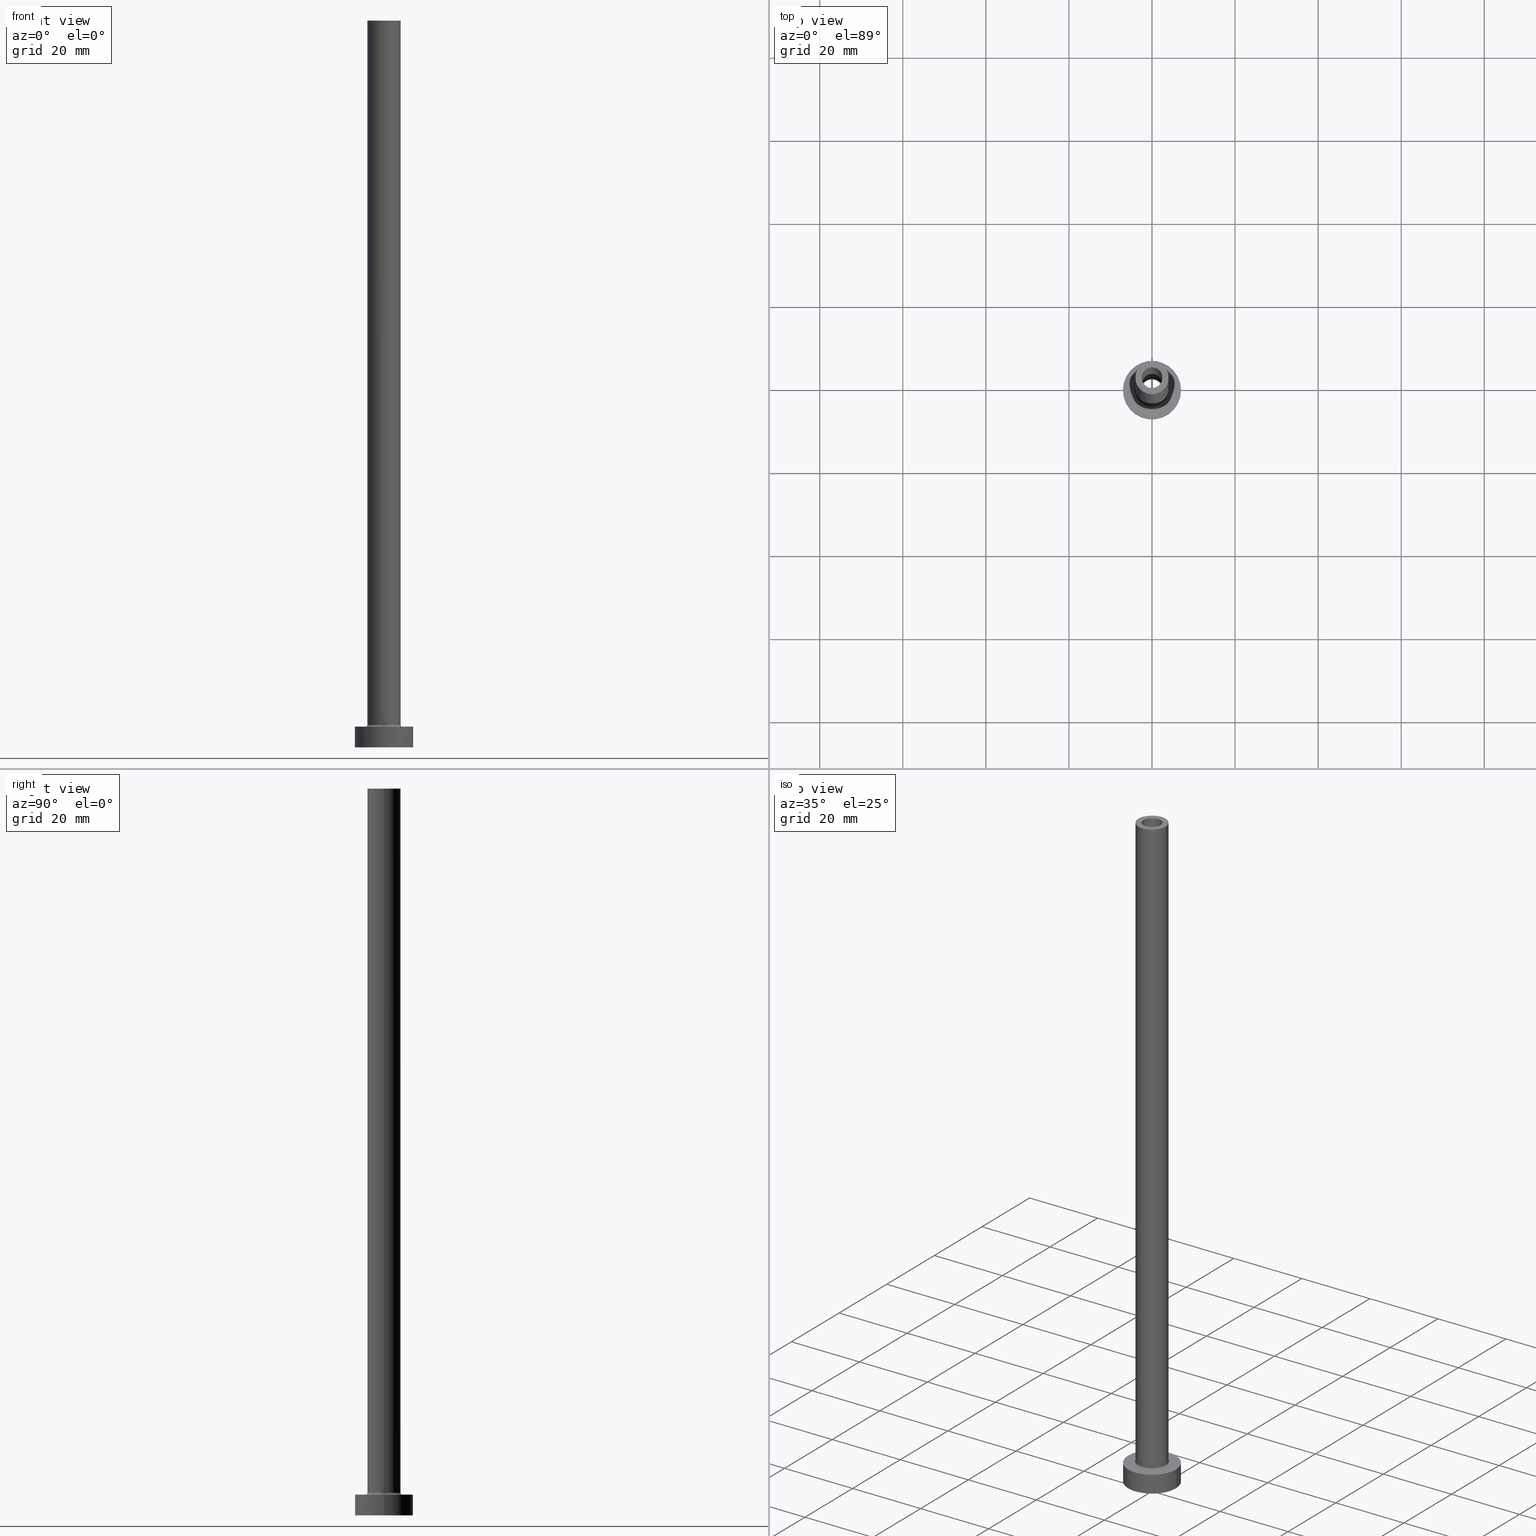
[diagram: canonical four-view strip — front | top / right | iso, engineering-drawing reading convention]
A machine part, canonical four-view strip (front | top / right | iso — engineering-drawing reading convention). The complete STEP part file that produces these views, byte-faithful:
ISO-10303-21;
HEADER;
FILE_DESCRIPTION (( 'STEP AP203' ),
    '1' );
FILE_NAME ('8742.STEP',
    '2023-02-13T17:11:22',
    ( '' ),
    ( '' ),
    'SwSTEP 2.0',
    'SolidWorks 2019',
    '' );
FILE_SCHEMA (( 'CONFIG_CONTROL_DESIGN' ));
ENDSEC;

DATA;
#1 = EDGE_CURVE ( 'NONE', #73, #440, #110, .T. ) ;
#2 = ORIENTED_EDGE ( 'NONE', *, *, #280, .F. ) ;
#3 = EDGE_LOOP ( 'NONE', ( #37, #375 ) ) ;
#4 = ADVANCED_BREP_SHAPE_REPRESENTATION ( '8742', ( #241, #457 ), #90 ) ;
#5 = EDGE_LOOP ( 'NONE', ( #373, #251, #396, #331 ) ) ;
#6 = CARTESIAN_POINT ( 'NONE',  ( 0.000000000000000000, 0.000000000000000000, 137.4953318805773961 ) ) ;
#7 = EDGE_CURVE ( 'NONE', #421, #197, #212, .T. ) ;
#8 = ORIENTED_EDGE ( 'NONE', *, *, #111, .T. ) ;
#9 = CIRCLE ( 'NONE', #252, 4.500000000000000888 ) ;
#10 = AXIS2_PLACEMENT_3D ( 'NONE', #205, #201, #92 ) ;
#11 = PERSON_AND_ORGANIZATION ( #337, #222 ) ;
#12 = DIRECTION ( 'NONE',  ( 0.000000000000000000, 0.000000000000000000, 1.000000000000000000 ) ) ;
#13 = ORIENTED_EDGE ( 'NONE', *, *, #301, .F. ) ;
#14 = ADVANCED_FACE ( 'NONE', ( #146 ), #366, .F. ) ;
#15 = AXIS2_PLACEMENT_3D ( 'NONE', #273, #94, #208 ) ;
#16 = APPROVAL_PERSON_ORGANIZATION ( #179, #369, #38 ) ;
#17 = CARTESIAN_POINT ( 'NONE',  ( 0.000000000000000000, 0.000000000000000000, 137.4953318805773961 ) ) ;
#18 = APPROVAL_STATUS ( 'not_yet_approved' ) ;
#19 = CARTESIAN_POINT ( 'NONE',  ( 4.000000000000000000, 4.898587196589412829E-16, 5.500000000000005329 ) ) ;
#20 = APPROVAL_DATE_TIME ( #54, #183 ) ;
#21 = DIRECTION ( 'NONE',  ( 1.000000000000000000, 0.000000000000000000, 0.000000000000000000 ) ) ;
#22 = ADVANCED_FACE ( 'NONE', ( #431, #154 ), #149, .T. ) ;
#23 = DIRECTION ( 'NONE',  ( 1.000000000000000000, 0.000000000000000000, 0.000000000000000000 ) ) ;
#24 = DIRECTION ( 'NONE',  ( 0.000000000000000000, 0.000000000000000000, -1.000000000000000000 ) ) ;
#25 = UNCERTAINTY_MEASURE_WITH_UNIT (LENGTH_MEASURE( 1.000000000000000082E-05 ), #209, 'distance_accuracy_value', 'NONE');
#26 = DATE_AND_TIME ( #153, #412 ) ;
#27 = PERSON_AND_ORGANIZATION_ROLE ( 'design_owner' ) ;
#28 = ADVANCED_FACE ( 'NONE', ( #218, #256 ), #220, .T. ) ;
#29 = CARTESIAN_POINT ( 'NONE',  ( 0.000000000000000000, 0.000000000000000000, 5.000000000000000000 ) ) ;
#30 = CARTESIAN_POINT ( 'NONE',  ( 2.500000000000000000, 3.061616997868383141E-16, 175.0000000000000284 ) ) ;
#31 = DIRECTION ( 'NONE',  ( 0.000000000000000000, 0.000000000000000000, 1.000000000000000000 ) ) ;
#32 = LOCAL_TIME ( 18, 11, 22.00000000000000000, #370 ) ;
#33 = ORIENTED_EDGE ( 'NONE', *, *, #409, .T. ) ;
#34 = PRODUCT_DEFINITION ( 'NEZN�M�', '', #392, #386 ) ;
#35 = PERSON_AND_ORGANIZATION_ROLE ( 'creator' ) ;
#36 = CIRCLE ( 'NONE', #303, 4.000000000000000000 ) ;
#37 = ORIENTED_EDGE ( 'NONE', *, *, #456, .T. ) ;
#38 = APPROVAL_ROLE ( '' ) ;
#39 = CARTESIAN_POINT ( 'NONE',  ( 2.500000000000000000, 3.061616997868383141E-16, 175.0000000000000284 ) ) ;
#40 = CIRCLE ( 'NONE', #426, 4.000000000000000000 ) ;
#41 = APPROVAL_PERSON_ORGANIZATION ( #96, #183, #284 ) ;
#42 = ORIENTED_EDGE ( 'NONE', *, *, #363, .T. ) ;
#43 = CALENDAR_DATE ( 2023, 13, 2 ) ;
#44 = PLANE ( 'NONE',  #248 ) ;
#45 = ORIENTED_EDGE ( 'NONE', *, *, #417, .F. ) ;
#46 = ORIENTED_EDGE ( 'NONE', *, *, #101, .T. ) ;
#47 = ORIENTED_EDGE ( 'NONE', *, *, #328, .T. ) ;
#48 = CARTESIAN_POINT ( 'NONE',  ( -2.649999999999999911, 0.000000000000000000, 137.4953318805773961 ) ) ;
#49 = CIRCLE ( 'NONE', #10, 0.5000000000000004441 ) ;
#50 = FACE_BOUND ( 'NONE', #122, .T. ) ;
#51 = FACE_OUTER_BOUND ( 'NONE', #116, .T. ) ;
#52 = DIRECTION ( 'NONE',  ( 1.000000000000000000, 0.000000000000000000, 0.000000000000000000 ) ) ;
#53 = DIRECTION ( 'NONE',  ( 1.000000000000000000, 0.000000000000000000, 0.000000000000000000 ) ) ;
#54 = DATE_AND_TIME ( #276, #185 ) ;
#55 = DIRECTION ( 'NONE',  ( -1.000000000000000000, 0.000000000000000000, 0.000000000000000000 ) ) ;
#56 = FACE_OUTER_BOUND ( 'NONE', #334, .T. ) ;
#57 = CIRCLE ( 'NONE', #349, 2.649999999999999911 ) ;
#58 = CIRCLE ( 'NONE', #403, 7.000000000000000000 ) ;
#59 = CYLINDRICAL_SURFACE ( 'NONE', #455, 2.649999999999999911 ) ;
#60 = DIRECTION ( 'NONE',  ( -0.000000000000000000, -0.000000000000000000, -1.000000000000000000 ) ) ;
#61 = CARTESIAN_POINT ( 'NONE',  ( 0.000000000000000000, 0.000000000000000000, 130.0000000000000000 ) ) ;
#62 = ADVANCED_FACE ( 'NONE', ( #454 ), #395, .F. ) ;
#63 = PERSON_AND_ORGANIZATION ( #337, #222 ) ;
#64 = CARTESIAN_POINT ( 'NONE',  ( 0.000000000000000000, 0.000000000000000000, 5.500000000000005329 ) ) ;
#65 = DIRECTION ( 'NONE',  ( 0.000000000000000000, 0.000000000000000000, 1.000000000000000000 ) ) ;
#66 = CC_DESIGN_PERSON_AND_ORGANIZATION_ASSIGNMENT ( #326, #249, ( #350 ) ) ;
#67 = CARTESIAN_POINT ( 'NONE',  ( 2.649999999999999911, 3.245314017740485962E-16, 0.000000000000000000 ) ) ;
#68 = DIRECTION ( 'NONE',  ( 1.000000000000000000, 0.000000000000000000, 0.000000000000000000 ) ) ;
#69 = ORIENTED_EDGE ( 'NONE', *, *, #204, .F. ) ;
#70 = MECHANICAL_CONTEXT ( 'NONE', #343, 'mechanical' ) ;
#71 = AXIS2_PLACEMENT_3D ( 'NONE', #83, #340, #124 ) ;
#72 = AXIS2_PLACEMENT_3D ( 'NONE', #203, #244, #98 ) ;
#73 = VERTEX_POINT ( 'NONE', #428 ) ;
#74 = ADVANCED_FACE ( 'NONE', ( #376 ), #260, .F. ) ;
#75 = PERSON_AND_ORGANIZATION_ROLE ( 'design_supplier' ) ;
#76 = FACE_OUTER_BOUND ( 'NONE', #152, .T. ) ;
#77 = DIRECTION ( 'NONE',  ( 0.000000000000000000, 0.000000000000000000, 1.000000000000000000 ) ) ;
#78 = CLOSED_SHELL ( 'NONE', ( #333, #263, #141, #296, #341, #246, #28, #135, #119, #22, #62, #74, #423, #14 ) ) ;
#79 = ORIENTED_EDGE ( 'NONE', *, *, #363, .F. ) ;
#80 = PERSON_AND_ORGANIZATION ( #337, #222 ) ;
#81 = VERTEX_POINT ( 'NONE', #237 ) ;
#82 = CIRCLE ( 'NONE', #427, 2.500000000000000000 ) ;
#83 = CARTESIAN_POINT ( 'NONE',  ( 0.000000000000000000, 0.000000000000000000, 130.0000000000000000 ) ) ;
#84 = EDGE_LOOP ( 'NONE', ( #410, #413, #215, #325 ) ) ;
#85 = EDGE_CURVE ( 'NONE', #165, #73, #442, .T. ) ;
#86 = CARTESIAN_POINT ( 'NONE',  ( 0.000000000000000000, 0.000000000000000000, 5.500000000000005329 ) ) ;
#87 = ORIENTED_EDGE ( 'NONE', *, *, #126, .F. ) ;
#88 = ORIENTED_EDGE ( 'NONE', *, *, #238, .T. ) ;
#89 = CIRCLE ( 'NONE', #184, 4.000000000000000000 ) ;
#90 =( GEOMETRIC_REPRESENTATION_CONTEXT ( 3 ) GLOBAL_UNCERTAINTY_ASSIGNED_CONTEXT ( ( #25 ) ) GLOBAL_UNIT_ASSIGNED_CONTEXT ( ( #209, #453, #290 ) ) REPRESENTATION_CONTEXT ( 'NONE', 'WORKASPACE' ) );
#91 = PRODUCT_RELATED_PRODUCT_CATEGORY ( 'detail', '', ( #159 ) ) ;
#92 = DIRECTION ( 'NONE',  ( -1.000000000000000000, 1.224646799147351482E-16, 0.000000000000000000 ) ) ;
#93 = ORIENTED_EDGE ( 'NONE', *, *, #1, .F. ) ;
#94 = DIRECTION ( 'NONE',  ( 0.000000000000000000, -1.000000000000000000, 0.000000000000000000 ) ) ;
#95 = DIRECTION ( 'NONE',  ( -0.000000000000000000, -0.000000000000000000, -1.000000000000000000 ) ) ;
#96 = PERSON_AND_ORGANIZATION ( #337, #222 ) ;
#97 = CARTESIAN_POINT ( 'NONE',  ( 0.000000000000000000, 0.000000000000000000, 0.000000000000000000 ) ) ;
#98 = DIRECTION ( 'NONE',  ( 1.000000000000000000, 0.000000000000000000, 0.000000000000000000 ) ) ;
#99 = EDGE_LOOP ( 'NONE', ( #377, #449 ) ) ;
#100 = CIRCLE ( 'NONE', #323, 7.000000000000000000 ) ;
#101 = EDGE_CURVE ( 'NONE', #155, #421, #266, .T. ) ;
#102 = CYLINDRICAL_SURFACE ( 'NONE', #113, 7.000000000000000000 ) ;
#103 = CARTESIAN_POINT ( 'NONE',  ( 0.000000000000000000, 0.000000000000000000, 5.000000000000000000 ) ) ;
#104 = DIRECTION ( 'NONE',  ( 1.000000000000000000, 0.000000000000000000, 0.000000000000000000 ) ) ;
#105 = CC_DESIGN_PERSON_AND_ORGANIZATION_ASSIGNMENT ( #63, #35, ( #392 ) ) ;
#106 = APPROVAL_STATUS ( 'not_yet_approved' ) ;
#107 = AXIS2_PLACEMENT_3D ( 'NONE', #272, #65, #415 ) ;
#108 = DIRECTION ( 'NONE',  ( 0.000000000000000000, 0.000000000000000000, 1.000000000000000000 ) ) ;
#109 = LOCAL_TIME ( 18, 11, 22.00000000000000000, #189 ) ;
#110 = CIRCLE ( 'NONE', #198, 2.649999999999999911 ) ;
#111 = EDGE_CURVE ( 'NONE', #421, #155, #36, .T. ) ;
#112 = DIRECTION ( 'NONE',  ( -0.000000000000000000, -0.000000000000000000, -1.000000000000000000 ) ) ;
#113 = AXIS2_PLACEMENT_3D ( 'NONE', #171, #60, #55 ) ;
#114 = CIRCLE ( 'NONE', #144, 2.500000000000000000 ) ;
#115 = CARTESIAN_POINT ( 'NONE',  ( -2.500000000000000000, 0.000000000000000000, 175.0000000000000284 ) ) ;
#116 = EDGE_LOOP ( 'NONE', ( #367, #300 ) ) ;
#117 = VERTEX_POINT ( 'NONE', #157 ) ;
#118 = DIRECTION ( 'NONE',  ( -1.000000000000000000, 0.000000000000000000, 0.000000000000000000 ) ) ;
#119 = ADVANCED_FACE ( 'NONE', ( #127 ), #306, .T. ) ;
#120 = VERTEX_POINT ( 'NONE', #232 ) ;
#121 = APPROVAL_DATE_TIME ( #228, #389 ) ;
#122 = EDGE_LOOP ( 'NONE', ( #93, #192 ) ) ;
#123 = CC_DESIGN_APPROVAL ( #183, ( #392 ) ) ;
#124 = DIRECTION ( 'NONE',  ( 1.000000000000000000, 0.000000000000000000, 0.000000000000000000 ) ) ;
#125 = ORIENTED_EDGE ( 'NONE', *, *, #280, .T. ) ;
#126 = EDGE_CURVE ( 'NONE', #155, #120, #378, .T. ) ;
#127 = FACE_OUTER_BOUND ( 'NONE', #336, .T. ) ;
#128 = AXIS2_PLACEMENT_3D ( 'NONE', #374, #190, #339 ) ;
#129 = CARTESIAN_POINT ( 'NONE',  ( 0.000000000000000000, 0.000000000000000000, 5.000000000000000000 ) ) ;
#130 = ORIENTED_EDGE ( 'NONE', *, *, #7, .F. ) ;
#131 = ORIENTED_EDGE ( 'NONE', *, *, #285, .F. ) ;
#132 = CARTESIAN_POINT ( 'NONE',  ( 0.000000000000000000, 0.000000000000000000, 175.0000000000000284 ) ) ;
#133 = CARTESIAN_POINT ( 'NONE',  ( 0.000000000000000000, 0.000000000000000000, 0.000000000000000000 ) ) ;
#134 = DIRECTION ( 'NONE',  ( -1.000000000000000000, 0.000000000000000000, 0.000000000000000000 ) ) ;
#135 = ADVANCED_FACE ( 'NONE', ( #50, #196 ), #44, .F. ) ;
#136 = CARTESIAN_POINT ( 'NONE',  ( 2.649999999999999911, 3.245314017740485962E-16, 137.4953318805773961 ) ) ;
#137 = AXIS2_PLACEMENT_3D ( 'NONE', #129, #255, #224 ) ;
#138 = CC_DESIGN_SECURITY_CLASSIFICATION ( #350, ( #392 ) ) ;
#139 = DIRECTION ( 'NONE',  ( -0.000000000000000000, -0.000000000000000000, -1.000000000000000000 ) ) ;
#140 = DIRECTION ( 'NONE',  ( 0.000000000000000000, 0.000000000000000000, 1.000000000000000000 ) ) ;
#141 = ADVANCED_FACE ( 'NONE', ( #302 ), #143, .F. ) ;
#142 = SECURITY_CLASSIFICATION_LEVEL ( 'unclassified' ) ;
#143 = TOROIDAL_SURFACE ( 'NONE', #391, 4.500000000000000888, 0.5000000000000000000 ) ;
#144 = AXIS2_PLACEMENT_3D ( 'NONE', #170, #380, #53 ) ;
#145 = LINE ( 'NONE', #30, #308 ) ;
#146 = FACE_OUTER_BOUND ( 'NONE', #160, .T. ) ;
#147 = CC_DESIGN_PERSON_AND_ORGANIZATION_ASSIGNMENT ( #258, #226, ( #34 ) ) ;
#148 = COORDINATED_UNIVERSAL_TIME_OFFSET ( 1, 0, .AHEAD. ) ;
#149 = PLANE ( 'NONE',  #382 ) ;
#150 = PERSON_AND_ORGANIZATION ( #337, #222 ) ;
#151 = ORIENTED_EDGE ( 'NONE', *, *, #101, .F. ) ;
#152 = EDGE_LOOP ( 'NONE', ( #305, #406, #156, #87 ) ) ;
#153 = CALENDAR_DATE ( 2023, 13, 2 ) ;
#154 = FACE_OUTER_BOUND ( 'NONE', #267, .T. ) ;
#155 = VERTEX_POINT ( 'NONE', #387 ) ;
#156 = ORIENTED_EDGE ( 'NONE', *, *, #173, .T. ) ;
#157 = CARTESIAN_POINT ( 'NONE',  ( 7.000000000000000000, 8.572527594031473190E-16, 5.000000000000000000 ) ) ;
#158 = CIRCLE ( 'NONE', #292, 2.500000000000000000 ) ;
#159 = PRODUCT ( '8742', '8742', '', ( #70 ) ) ;
#160 = EDGE_LOOP ( 'NONE', ( #45, #438, #207, #187 ) ) ;
#161 = ORIENTED_EDGE ( 'NONE', *, *, #328, .F. ) ;
#162 = EDGE_CURVE ( 'NONE', #236, #440, #177, .T. ) ;
#163 = DIRECTION ( 'NONE',  ( 1.000000000000000000, 0.000000000000000000, -0.000000000000000000 ) ) ;
#164 = VECTOR ( 'NONE', #371, 1000.000000000000000 ) ;
#165 = VERTEX_POINT ( 'NONE', #450 ) ;
#166 = CARTESIAN_POINT ( 'NONE',  ( 0.000000000000000000, 0.000000000000000000, 175.0000000000000284 ) ) ;
#167 = DIRECTION ( 'NONE',  ( 0.000000000000000000, 0.000000000000000000, -1.000000000000000000 ) ) ;
#168 = DIRECTION ( 'NONE',  ( 0.000000000000000000, 0.000000000000000000, 1.000000000000000000 ) ) ;
#169 = COORDINATED_UNIVERSAL_TIME_OFFSET ( 1, 0, .AHEAD. ) ;
#170 = CARTESIAN_POINT ( 'NONE',  ( 0.000000000000000000, 0.000000000000000000, 175.0000000000000284 ) ) ;
#171 = CARTESIAN_POINT ( 'NONE',  ( 0.000000000000000000, 0.000000000000000000, 5.000000000000000000 ) ) ;
#172 = DIRECTION ( 'NONE',  ( 1.000000000000000000, 0.000000000000000000, -0.000000000000000000 ) ) ;
#173 = EDGE_CURVE ( 'NONE', #197, #120, #89, .T. ) ;
#174 = CALENDAR_DATE ( 2023, 13, 2 ) ;
#175 = AXIS2_PLACEMENT_3D ( 'NONE', #166, #279, #134 ) ;
#176 = CIRCLE ( 'NONE', #72, 2.649999999999999911 ) ;
#177 = LINE ( 'NONE', #136, #360 ) ;
#178 = DIRECTION ( 'NONE',  ( 0.000000000000000000, 0.000000000000000000, 1.000000000000000000 ) ) ;
#179 = PERSON_AND_ORGANIZATION ( #337, #222 ) ;
#180 = CC_DESIGN_APPROVAL ( #369, ( #350 ) ) ;
#181 = EDGE_CURVE ( 'NONE', #195, #247, #297, .T. ) ;
#182 = CALENDAR_DATE ( 2023, 13, 2 ) ;
#183 = APPROVAL ( #18, 'NEUR�EN�' ) ;
#184 = AXIS2_PLACEMENT_3D ( 'NONE', #64, #357, #283 ) ;
#185 = LOCAL_TIME ( 18, 11, 22.00000000000000000, #169 ) ;
#186 = VERTEX_POINT ( 'NONE', #451 ) ;
#187 = ORIENTED_EDGE ( 'NONE', *, *, #313, .F. ) ;
#188 = ORIENTED_EDGE ( 'NONE', *, *, #383, .F. ) ;
#189 = COORDINATED_UNIVERSAL_TIME_OFFSET ( 1, 0, .AHEAD. ) ;
#190 = DIRECTION ( 'NONE',  ( 0.000000000000000000, 0.000000000000000000, 1.000000000000000000 ) ) ;
#191 = AXIS2_PLACEMENT_3D ( 'NONE', #86, #332, #295 ) ;
#192 = ORIENTED_EDGE ( 'NONE', *, *, #253, .F. ) ;
#193 = DIRECTION ( 'NONE',  ( 0.000000000000000000, 0.000000000000000000, -1.000000000000000000 ) ) ;
#194 = EDGE_CURVE ( 'NONE', #262, #186, #315, .T. ) ;
#195 = VERTEX_POINT ( 'NONE', #277 ) ;
#196 = FACE_OUTER_BOUND ( 'NONE', #99, .T. ) ;
#197 = VERTEX_POINT ( 'NONE', #19 ) ;
#198 = AXIS2_PLACEMENT_3D ( 'NONE', #362, #112, #327 ) ;
#199 = DIRECTION ( 'NONE',  ( 0.000000000000000000, 0.000000000000000000, -1.000000000000000000 ) ) ;
#200 = DIRECTION ( 'NONE',  ( -0.000000000000000000, -0.000000000000000000, -1.000000000000000000 ) ) ;
#201 = DIRECTION ( 'NONE',  ( 1.224646799147353207E-16, 1.000000000000000000, -0.000000000000000000 ) ) ;
#202 = DATE_AND_TIME ( #174, #109 ) ;
#203 = CARTESIAN_POINT ( 'NONE',  ( 0.000000000000000000, 0.000000000000000000, 130.0000000000000000 ) ) ;
#204 = EDGE_CURVE ( 'NONE', #120, #197, #40, .T. ) ;
#205 = CARTESIAN_POINT ( 'NONE',  ( -4.500000000000000888, 5.510910596163089556E-16, 5.500000000000005329 ) ) ;
#206 = VECTOR ( 'NONE', #250, 1000.000000000000000 ) ;
#207 = ORIENTED_EDGE ( 'NONE', *, *, #400, .T. ) ;
#208 = DIRECTION ( 'NONE',  ( 0.000000000000000000, 0.000000000000000000, -1.000000000000000000 ) ) ;
#209 =( LENGTH_UNIT ( ) NAMED_UNIT ( * ) SI_UNIT ( .MILLI., .METRE. ) );
#210 = DIRECTION ( 'NONE',  ( 0.000000000000000000, 0.000000000000000000, 1.000000000000000000 ) ) ;
#211 = DIRECTION ( 'NONE',  ( -0.000000000000000000, -0.000000000000000000, -1.000000000000000000 ) ) ;
#212 = LINE ( 'NONE', #459, #206 ) ;
#213 = CC_DESIGN_PERSON_AND_ORGANIZATION_ASSIGNMENT ( #80, #27, ( #159 ) ) ;
#214 = AXIS2_PLACEMENT_3D ( 'NONE', #320, #365, #394 ) ;
#215 = ORIENTED_EDGE ( 'NONE', *, *, #253, .T. ) ;
#216 = VERTEX_POINT ( 'NONE', #424 ) ;
#217 = DIRECTION ( 'NONE',  ( 1.000000000000000000, 0.000000000000000000, 0.000000000000000000 ) ) ;
#218 = FACE_BOUND ( 'NONE', #289, .T. ) ;
#219 = EDGE_CURVE ( 'NONE', #236, #165, #307, .T. ) ;
#220 = PLANE ( 'NONE',  #274 ) ;
#221 = CIRCLE ( 'NONE', #15, 0.5000000000000004441 ) ;
#222 = ORGANIZATION ( 'NEUR�EN�', 'NEUR�EN�', '' ) ;
#223 = ORIENTED_EDGE ( 'NONE', *, *, #285, .T. ) ;
#224 = DIRECTION ( 'NONE',  ( 1.000000000000000000, 0.000000000000000000, 0.000000000000000000 ) ) ;
#225 = ORIENTED_EDGE ( 'NONE', *, *, #1, .T. ) ;
#226 = PERSON_AND_ORGANIZATION_ROLE ( 'creator' ) ;
#227 = ORIENTED_EDGE ( 'NONE', *, *, #126, .T. ) ;
#228 = DATE_AND_TIME ( #43, #32 ) ;
#229 = VECTOR ( 'NONE', #193, 1000.000000000000000 ) ;
#230 = EDGE_CURVE ( 'NONE', #197, #247, #221, .T. ) ;
#231 = ORIENTED_EDGE ( 'NONE', *, *, #430, .F. ) ;
#232 = CARTESIAN_POINT ( 'NONE',  ( -4.000000000000000000, 0.000000000000000000, 5.500000000000005329 ) ) ;
#233 = AXIS2_PLACEMENT_3D ( 'NONE', #275, #95, #235 ) ;
#234 = LOCAL_TIME ( 18, 11, 22.00000000000000000, #148 ) ;
#235 = DIRECTION ( 'NONE',  ( -1.000000000000000000, 0.000000000000000000, 0.000000000000000000 ) ) ;
#236 = VERTEX_POINT ( 'NONE', #418 ) ;
#237 = CARTESIAN_POINT ( 'NONE',  ( -7.000000000000000000, 0.000000000000000000, 5.000000000000000000 ) ) ;
#238 = EDGE_CURVE ( 'NONE', #81, #186, #353, .T. ) ;
#239 = ORIENTED_EDGE ( 'NONE', *, *, #194, .T. ) ;
#240 = CARTESIAN_POINT ( 'NONE',  ( -7.000000000000000000, 0.000000000000000000, 5.000000000000000000 ) ) ;
#241 = MANIFOLD_SOLID_BREP ( 'Odebrat vysunut�m4', #78 ) ;
#242 = CARTESIAN_POINT ( 'NONE',  ( 7.000000000000000000, 8.572527594031473190E-16, 0.000000000000000000 ) ) ;
#243 = CARTESIAN_POINT ( 'NONE',  ( 0.000000000000000000, 0.000000000000000000, 5.500000000000005329 ) ) ;
#244 = DIRECTION ( 'NONE',  ( 0.000000000000000000, 0.000000000000000000, 1.000000000000000000 ) ) ;
#245 = DIRECTION ( 'NONE',  ( 0.000000000000000000, 0.000000000000000000, 1.000000000000000000 ) ) ;
#246 = ADVANCED_FACE ( 'NONE', ( #419 ), #102, .T. ) ;
#247 = VERTEX_POINT ( 'NONE', #381 ) ;
#248 = AXIS2_PLACEMENT_3D ( 'NONE', #344, #12, #163 ) ;
#249 = PERSON_AND_ORGANIZATION_ROLE ( 'classification_officer' ) ;
#250 = DIRECTION ( 'NONE',  ( -0.000000000000000000, -0.000000000000000000, -1.000000000000000000 ) ) ;
#251 = ORIENTED_EDGE ( 'NONE', *, *, #417, .T. ) ;
#252 = AXIS2_PLACEMENT_3D ( 'NONE', #361, #211, #68 ) ;
#253 = EDGE_CURVE ( 'NONE', #440, #73, #57, .T. ) ;
#254 = ORIENTED_EDGE ( 'NONE', *, *, #230, .F. ) ;
#255 = DIRECTION ( 'NONE',  ( 0.000000000000000000, 0.000000000000000000, 1.000000000000000000 ) ) ;
#256 = FACE_OUTER_BOUND ( 'NONE', #404, .T. ) ;
#257 = ORIENTED_EDGE ( 'NONE', *, *, #162, .F. ) ;
#258 = PERSON_AND_ORGANIZATION ( #337, #222 ) ;
#259 = VECTOR ( 'NONE', #422, 1000.000000000000000 ) ;
#260 = CYLINDRICAL_SURFACE ( 'NONE', #407, 2.649999999999999911 ) ;
#261 = CC_DESIGN_APPROVAL ( #389, ( #34 ) ) ;
#262 = VERTEX_POINT ( 'NONE', #242 ) ;
#263 = ADVANCED_FACE ( 'NONE', ( #348 ), #59, .F. ) ;
#264 = ORIENTED_EDGE ( 'NONE', *, *, #181, .T. ) ;
#265 = DIRECTION ( 'NONE',  ( -0.000000000000000000, -0.000000000000000000, -1.000000000000000000 ) ) ;
#266 = CIRCLE ( 'NONE', #128, 4.000000000000000000 ) ;
#267 = EDGE_LOOP ( 'NONE', ( #46, #8 ) ) ;
#268 = CC_DESIGN_DATE_AND_TIME_ASSIGNMENT ( #202, #282, ( #34 ) ) ;
#269 = VECTOR ( 'NONE', #199, 1000.000000000000000 ) ;
#270 = CYLINDRICAL_SURFACE ( 'NONE', #175, 2.500000000000000000 ) ;
#271 = EDGE_LOOP ( 'NONE', ( #79, #346, #434, #319 ) ) ;
#272 = CARTESIAN_POINT ( 'NONE',  ( 0.000000000000000000, 0.000000000000000000, 130.0000000000000000 ) ) ;
#273 = CARTESIAN_POINT ( 'NONE',  ( 4.500000000000000888, 0.000000000000000000, 5.500000000000005329 ) ) ;
#274 = AXIS2_PLACEMENT_3D ( 'NONE', #29, #178, #321 ) ;
#275 = CARTESIAN_POINT ( 'NONE',  ( 0.000000000000000000, 0.000000000000000000, 5.000000000000000000 ) ) ;
#276 = CALENDAR_DATE ( 2023, 13, 2 ) ;
#277 = CARTESIAN_POINT ( 'NONE',  ( -4.500000000000000888, 5.510910596163088569E-16, 5.000000000000002665 ) ) ;
#278 = CIRCLE ( 'NONE', #71, 2.500000000000000000 ) ;
#279 = DIRECTION ( 'NONE',  ( 0.000000000000000000, 0.000000000000000000, -1.000000000000000000 ) ) ;
#280 = EDGE_CURVE ( 'NONE', #117, #262, #352, .T. ) ;
#281 = CARTESIAN_POINT ( 'NONE',  ( 7.000000000000000000, 8.572527594031473190E-16, 5.000000000000000000 ) ) ;
#282 = DATE_TIME_ROLE ( 'creation_date' ) ;
#283 = DIRECTION ( 'NONE',  ( 1.000000000000000000, 0.000000000000000000, 0.000000000000000000 ) ) ;
#284 = APPROVAL_ROLE ( '' ) ;
#285 = EDGE_CURVE ( 'NONE', #81, #117, #100, .T. ) ;
#286 = VECTOR ( 'NONE', #200, 1000.000000000000000 ) ;
#287 = APPLICATION_PROTOCOL_DEFINITION ( 'international standard', 'config_control_design', 1994, #364 ) ;
#288 = SHAPE_DEFINITION_REPRESENTATION ( #432, #4 ) ;
#289 = EDGE_LOOP ( 'NONE', ( #405, #264 ) ) ;
#290 =( NAMED_UNIT ( * ) SI_UNIT ( $, .STERADIAN. ) SOLID_ANGLE_UNIT ( ) );
#291 = CARTESIAN_POINT ( 'NONE',  ( 0.000000000000000000, 0.000000000000000000, 175.0000000000000284 ) ) ;
#292 = AXIS2_PLACEMENT_3D ( 'NONE', #446, #168, #311 ) ;
#293 = DIRECTION ( 'NONE',  ( 1.000000000000000000, 0.000000000000000000, -0.000000000000000000 ) ) ;
#294 = VERTEX_POINT ( 'NONE', #115 ) ;
#295 = DIRECTION ( 'NONE',  ( 1.000000000000000000, 0.000000000000000000, 0.000000000000000000 ) ) ;
#296 = ADVANCED_FACE ( 'NONE', ( #76 ), #358, .T. ) ;
#297 = CIRCLE ( 'NONE', #441, 4.500000000000000888 ) ;
#298 = VERTEX_POINT ( 'NONE', #39 ) ;
#299 = DIRECTION ( 'NONE',  ( -1.000000000000000000, 0.000000000000000000, 0.000000000000000000 ) ) ;
#300 = ORIENTED_EDGE ( 'NONE', *, *, #219, .F. ) ;
#301 = EDGE_CURVE ( 'NONE', #247, #195, #9, .T. ) ;
#302 = FACE_OUTER_BOUND ( 'NONE', #312, .T. ) ;
#303 = AXIS2_PLACEMENT_3D ( 'NONE', #132, #379, #52 ) ;
#304 = CYLINDRICAL_SURFACE ( 'NONE', #233, 7.000000000000000000 ) ;
#305 = ORIENTED_EDGE ( 'NONE', *, *, #111, .F. ) ;
#306 = CYLINDRICAL_SURFACE ( 'NONE', #425, 4.000000000000000000 ) ;
#307 = CIRCLE ( 'NONE', #107, 2.649999999999999911 ) ;
#308 = VECTOR ( 'NONE', #309, 1000.000000000000000 ) ;
#309 = DIRECTION ( 'NONE',  ( 0.000000000000000000, 0.000000000000000000, -1.000000000000000000 ) ) ;
#310 = CARTESIAN_POINT ( 'NONE',  ( 0.000000000000000000, 0.000000000000000000, 5.500000000000005329 ) ) ;
#311 = DIRECTION ( 'NONE',  ( 1.000000000000000000, 0.000000000000000000, 0.000000000000000000 ) ) ;
#312 = EDGE_LOOP ( 'NONE', ( #69, #42, #13, #254 ) ) ;
#313 = EDGE_CURVE ( 'NONE', #436, #216, #278, .T. ) ;
#314 = DIRECTION ( 'NONE',  ( -1.000000000000000000, 0.000000000000000000, 0.000000000000000000 ) ) ;
#315 = CIRCLE ( 'NONE', #368, 7.000000000000000000 ) ;
#316 = DIRECTION ( 'NONE',  ( 1.000000000000000000, 0.000000000000000000, 0.000000000000000000 ) ) ;
#317 = CARTESIAN_POINT ( 'NONE',  ( 0.000000000000000000, 0.000000000000000000, 5.000000000000000000 ) ) ;
#318 = CC_DESIGN_PERSON_AND_ORGANIZATION_ASSIGNMENT ( #150, #75, ( #392 ) ) ;
#319 = ORIENTED_EDGE ( 'NONE', *, *, #181, .F. ) ;
#320 = CARTESIAN_POINT ( 'NONE',  ( 0.000000000000000000, 0.000000000000000000, 175.0000000000000284 ) ) ;
#321 = DIRECTION ( 'NONE',  ( 1.000000000000000000, 0.000000000000000000, -0.000000000000000000 ) ) ;
#322 = FACE_BOUND ( 'NONE', #3, .T. ) ;
#323 = AXIS2_PLACEMENT_3D ( 'NONE', #103, #245, #217 ) ;
#324 = APPROVAL_DATE_TIME ( #26, #369 ) ;
#325 = ORIENTED_EDGE ( 'NONE', *, *, #85, .F. ) ;
#326 = PERSON_AND_ORGANIZATION ( #337, #222 ) ;
#327 = DIRECTION ( 'NONE',  ( 1.000000000000000000, 0.000000000000000000, 0.000000000000000000 ) ) ;
#328 = EDGE_CURVE ( 'NONE', #117, #81, #338, .T. ) ;
#329 = DATE_AND_TIME ( #182, #234 ) ;
#330 = EDGE_LOOP ( 'NONE', ( #231, #188 ) ) ;
#331 = ORIENTED_EDGE ( 'NONE', *, *, #400, .F. ) ;
#332 = DIRECTION ( 'NONE',  ( 0.000000000000000000, 0.000000000000000000, 1.000000000000000000 ) ) ;
#333 = ADVANCED_FACE ( 'NONE', ( #372 ), #270, .F. ) ;
#334 = EDGE_LOOP ( 'NONE', ( #161, #125, #239, #359 ) ) ;
#335 = ORIENTED_EDGE ( 'NONE', *, *, #219, .T. ) ;
#336 = EDGE_LOOP ( 'NONE', ( #130, #151, #227, #435 ) ) ;
#337 = PERSON ( 'NEUR�EN�', 'NEUR�EN�', 'NEUR�EN�', ('NEUR�EN�'), ('NEUR�EN�'), ('NEUR�EN�') ) ;
#338 = CIRCLE ( 'NONE', #137, 7.000000000000000000 ) ;
#339 = DIRECTION ( 'NONE',  ( 1.000000000000000000, 0.000000000000000000, 0.000000000000000000 ) ) ;
#340 = DIRECTION ( 'NONE',  ( 0.000000000000000000, 0.000000000000000000, 1.000000000000000000 ) ) ;
#341 = ADVANCED_FACE ( 'NONE', ( #56 ), #304, .T. ) ;
#342 = ORIENTED_EDGE ( 'NONE', *, *, #85, .T. ) ;
#343 = APPLICATION_CONTEXT ( 'configuration controlled 3d designs of mechanical parts and assemblies' ) ;
#344 = CARTESIAN_POINT ( 'NONE',  ( 0.000000000000000000, 0.000000000000000000, 0.000000000000000000 ) ) ;
#345 = PLANE ( 'NONE',  #448 ) ;
#346 = ORIENTED_EDGE ( 'NONE', *, *, #173, .F. ) ;
#347 = DIRECTION ( 'NONE',  ( -1.000000000000000000, 0.000000000000000000, 0.000000000000000000 ) ) ;
#348 = FACE_OUTER_BOUND ( 'NONE', #84, .T. ) ;
#349 = AXIS2_PLACEMENT_3D ( 'NONE', #97, #445, #21 ) ;
#350 = SECURITY_CLASSIFICATION ( '', '', #142 ) ;
#351 = LINE ( 'NONE', #420, #269 ) ;
#352 = LINE ( 'NONE', #281, #259 ) ;
#353 = LINE ( 'NONE', #240, #286 ) ;
#354 = DIRECTION ( 'NONE',  ( 1.000000000000000000, 0.000000000000000000, 0.000000000000000000 ) ) ;
#355 = DIRECTION ( 'NONE',  ( 1.000000000000000000, 0.000000000000000000, 0.000000000000000000 ) ) ;
#356 = APPROVAL_PERSON_ORGANIZATION ( #11, #389, #414 ) ;
#357 = DIRECTION ( 'NONE',  ( 0.000000000000000000, 0.000000000000000000, 1.000000000000000000 ) ) ;
#358 = CYLINDRICAL_SURFACE ( 'NONE', #214, 4.000000000000000000 ) ;
#359 = ORIENTED_EDGE ( 'NONE', *, *, #238, .F. ) ;
#360 = VECTOR ( 'NONE', #24, 1000.000000000000000 ) ;
#361 = CARTESIAN_POINT ( 'NONE',  ( 0.000000000000000000, 0.000000000000000000, 5.000000000000000000 ) ) ;
#362 = CARTESIAN_POINT ( 'NONE',  ( 0.000000000000000000, 0.000000000000000000, 0.000000000000000000 ) ) ;
#363 = EDGE_CURVE ( 'NONE', #120, #195, #49, .T. ) ;
#364 = APPLICATION_CONTEXT ( 'configuration controlled 3d designs of mechanical parts and assemblies' ) ;
#365 = DIRECTION ( 'NONE',  ( -0.000000000000000000, -0.000000000000000000, -1.000000000000000000 ) ) ;
#366 = CYLINDRICAL_SURFACE ( 'NONE', #433, 2.500000000000000000 ) ;
#367 = ORIENTED_EDGE ( 'NONE', *, *, #397, .F. ) ;
#368 = AXIS2_PLACEMENT_3D ( 'NONE', #133, #384, #355 ) ;
#369 = APPROVAL ( #106, 'NEUR�EN�' ) ;
#370 = COORDINATED_UNIVERSAL_TIME_OFFSET ( 1, 0, .AHEAD. ) ;
#371 = DIRECTION ( 'NONE',  ( -0.000000000000000000, -0.000000000000000000, -1.000000000000000000 ) ) ;
#372 = FACE_OUTER_BOUND ( 'NONE', #5, .T. ) ;
#373 = ORIENTED_EDGE ( 'NONE', *, *, #430, .T. ) ;
#374 = CARTESIAN_POINT ( 'NONE',  ( 0.000000000000000000, 0.000000000000000000, 175.0000000000000284 ) ) ;
#375 = ORIENTED_EDGE ( 'NONE', *, *, #313, .T. ) ;
#376 = FACE_OUTER_BOUND ( 'NONE', #452, .T. ) ;
#377 = ORIENTED_EDGE ( 'NONE', *, *, #409, .F. ) ;
#378 = LINE ( 'NONE', #402, #164 ) ;
#379 = DIRECTION ( 'NONE',  ( 0.000000000000000000, 0.000000000000000000, 1.000000000000000000 ) ) ;
#380 = DIRECTION ( 'NONE',  ( 0.000000000000000000, 0.000000000000000000, 1.000000000000000000 ) ) ;
#381 = CARTESIAN_POINT ( 'NONE',  ( 4.500000000000000888, 0.000000000000000000, 5.000000000000002665 ) ) ;
#382 = AXIS2_PLACEMENT_3D ( 'NONE', #291, #77, #293 ) ;
#383 = EDGE_CURVE ( 'NONE', #298, #294, #114, .T. ) ;
#384 = DIRECTION ( 'NONE',  ( 0.000000000000000000, 0.000000000000000000, 1.000000000000000000 ) ) ;
#385 = DIRECTION ( 'NONE',  ( 0.000000000000000000, 0.000000000000000000, 1.000000000000000000 ) ) ;
#386 = DESIGN_CONTEXT ( 'detailed design', #364, 'design' ) ;
#387 = CARTESIAN_POINT ( 'NONE',  ( -4.000000000000000000, 0.000000000000000000, 175.0000000000000284 ) ) ;
#388 = CARTESIAN_POINT ( 'NONE',  ( 2.500000000000000000, 3.061616997868383141E-16, 130.0000000000000000 ) ) ;
#389 = APPROVAL ( #408, 'NEUR�EN�' ) ;
#390 = DIRECTION ( 'NONE',  ( 0.000000000000000000, 0.000000000000000000, 1.000000000000000000 ) ) ;
#391 = AXIS2_PLACEMENT_3D ( 'NONE', #310, #390, #23 ) ;
#392 = PRODUCT_DEFINITION_FORMATION_WITH_SPECIFIED_SOURCE ( 'LIBOVOLN�', '', #159, .NOT_KNOWN. ) ;
#393 = DIRECTION ( 'NONE',  ( 1.000000000000000000, 0.000000000000000000, 0.000000000000000000 ) ) ;
#394 = DIRECTION ( 'NONE',  ( -1.000000000000000000, 0.000000000000000000, 0.000000000000000000 ) ) ;
#395 = TOROIDAL_SURFACE ( 'NONE', #191, 4.500000000000000888, 0.5000000000000000000 ) ;
#396 = ORIENTED_EDGE ( 'NONE', *, *, #456, .F. ) ;
#397 = EDGE_CURVE ( 'NONE', #165, #236, #176, .T. ) ;
#398 = COORDINATED_UNIVERSAL_TIME_OFFSET ( 1, 0, .AHEAD. ) ;
#399 = CARTESIAN_POINT ( 'NONE',  ( 0.000000000000000000, 0.000000000000000000, 175.0000000000000284 ) ) ;
#400 = EDGE_CURVE ( 'NONE', #294, #216, #351, .T. ) ;
#401 = CARTESIAN_POINT ( 'NONE',  ( 0.000000000000000000, 0.000000000000000000, 0.000000000000000000 ) ) ;
#402 = CARTESIAN_POINT ( 'NONE',  ( -4.000000000000000000, 0.000000000000000000, 175.0000000000000284 ) ) ;
#403 = AXIS2_PLACEMENT_3D ( 'NONE', #416, #385, #354 ) ;
#404 = EDGE_LOOP ( 'NONE', ( #223, #47 ) ) ;
#405 = ORIENTED_EDGE ( 'NONE', *, *, #301, .T. ) ;
#406 = ORIENTED_EDGE ( 'NONE', *, *, #7, .T. ) ;
#407 = AXIS2_PLACEMENT_3D ( 'NONE', #6, #411, #299 ) ;
#408 = APPROVAL_STATUS ( 'not_yet_approved' ) ;
#409 = EDGE_CURVE ( 'NONE', #186, #262, #58, .T. ) ;
#410 = ORIENTED_EDGE ( 'NONE', *, *, #397, .T. ) ;
#411 = DIRECTION ( 'NONE',  ( 0.000000000000000000, 0.000000000000000000, -1.000000000000000000 ) ) ;
#412 = LOCAL_TIME ( 18, 11, 22.00000000000000000, #398 ) ;
#413 = ORIENTED_EDGE ( 'NONE', *, *, #162, .T. ) ;
#414 = APPROVAL_ROLE ( '' ) ;
#415 = DIRECTION ( 'NONE',  ( 1.000000000000000000, 0.000000000000000000, 0.000000000000000000 ) ) ;
#416 = CARTESIAN_POINT ( 'NONE',  ( 0.000000000000000000, 0.000000000000000000, 0.000000000000000000 ) ) ;
#417 = EDGE_CURVE ( 'NONE', #298, #436, #145, .T. ) ;
#418 = CARTESIAN_POINT ( 'NONE',  ( 2.649999999999999911, 3.245314017740485962E-16, 130.0000000000000000 ) ) ;
#419 = FACE_OUTER_BOUND ( 'NONE', #439, .T. ) ;
#420 = CARTESIAN_POINT ( 'NONE',  ( -2.500000000000000000, 0.000000000000000000, 175.0000000000000284 ) ) ;
#421 = VERTEX_POINT ( 'NONE', #444 ) ;
#422 = DIRECTION ( 'NONE',  ( -0.000000000000000000, -0.000000000000000000, -1.000000000000000000 ) ) ;
#423 = ADVANCED_FACE ( 'NONE', ( #322, #51 ), #345, .F. ) ;
#424 = CARTESIAN_POINT ( 'NONE',  ( -2.500000000000000000, 0.000000000000000000, 130.0000000000000000 ) ) ;
#425 = AXIS2_PLACEMENT_3D ( 'NONE', #437, #265, #347 ) ;
#426 = AXIS2_PLACEMENT_3D ( 'NONE', #243, #140, #316 ) ;
#427 = AXIS2_PLACEMENT_3D ( 'NONE', #447, #108, #393 ) ;
#428 = CARTESIAN_POINT ( 'NONE',  ( -2.649999999999999911, 0.000000000000000000, 0.000000000000000000 ) ) ;
#429 = DATE_TIME_ROLE ( 'classification_date' ) ;
#430 = EDGE_CURVE ( 'NONE', #294, #298, #82, .T. ) ;
#431 = FACE_BOUND ( 'NONE', #330, .T. ) ;
#432 = PRODUCT_DEFINITION_SHAPE ( 'NONE', 'NONE',  #34 ) ;
#433 = AXIS2_PLACEMENT_3D ( 'NONE', #399, #461, #118 ) ;
#434 = ORIENTED_EDGE ( 'NONE', *, *, #230, .T. ) ;
#435 = ORIENTED_EDGE ( 'NONE', *, *, #204, .T. ) ;
#436 = VERTEX_POINT ( 'NONE', #388 ) ;
#437 = CARTESIAN_POINT ( 'NONE',  ( 0.000000000000000000, 0.000000000000000000, 175.0000000000000284 ) ) ;
#438 = ORIENTED_EDGE ( 'NONE', *, *, #383, .T. ) ;
#439 = EDGE_LOOP ( 'NONE', ( #2, #131, #88, #33 ) ) ;
#440 = VERTEX_POINT ( 'NONE', #67 ) ;
#441 = AXIS2_PLACEMENT_3D ( 'NONE', #317, #139, #104 ) ;
#442 = LINE ( 'NONE', #48, #229 ) ;
#443 = CC_DESIGN_DATE_AND_TIME_ASSIGNMENT ( #329, #429, ( #350 ) ) ;
#444 = CARTESIAN_POINT ( 'NONE',  ( 4.000000000000000000, 4.898587196589412829E-16, 175.0000000000000284 ) ) ;
#445 = DIRECTION ( 'NONE',  ( -0.000000000000000000, -0.000000000000000000, -1.000000000000000000 ) ) ;
#446 = CARTESIAN_POINT ( 'NONE',  ( 0.000000000000000000, 0.000000000000000000, 130.0000000000000000 ) ) ;
#447 = CARTESIAN_POINT ( 'NONE',  ( 0.000000000000000000, 0.000000000000000000, 175.0000000000000284 ) ) ;
#448 = AXIS2_PLACEMENT_3D ( 'NONE', #61, #210, #172 ) ;
#449 = ORIENTED_EDGE ( 'NONE', *, *, #194, .F. ) ;
#450 = CARTESIAN_POINT ( 'NONE',  ( -2.649999999999999911, 0.000000000000000000, 130.0000000000000000 ) ) ;
#451 = CARTESIAN_POINT ( 'NONE',  ( -7.000000000000000000, 0.000000000000000000, 0.000000000000000000 ) ) ;
#452 = EDGE_LOOP ( 'NONE', ( #257, #335, #342, #225 ) ) ;
#453 =( NAMED_UNIT ( * ) PLANE_ANGLE_UNIT ( ) SI_UNIT ( $, .RADIAN. ) );
#454 = FACE_OUTER_BOUND ( 'NONE', #271, .T. ) ;
#455 = AXIS2_PLACEMENT_3D ( 'NONE', #17, #167, #314 ) ;
#456 = EDGE_CURVE ( 'NONE', #216, #436, #158, .T. ) ;
#457 = AXIS2_PLACEMENT_3D ( 'NONE', #401, #31, #458 ) ;
#458 = DIRECTION ( 'NONE',  ( 1.000000000000000000, 0.000000000000000000, 0.000000000000000000 ) ) ;
#459 = CARTESIAN_POINT ( 'NONE',  ( 4.000000000000000000, 4.898587196589412829E-16, 175.0000000000000284 ) ) ;
#460 = APPLICATION_PROTOCOL_DEFINITION ( 'international standard', 'config_control_design', 1994, #343 ) ;
#461 = DIRECTION ( 'NONE',  ( 0.000000000000000000, 0.000000000000000000, -1.000000000000000000 ) ) ;
ENDSEC;
END-ISO-10303-21;
